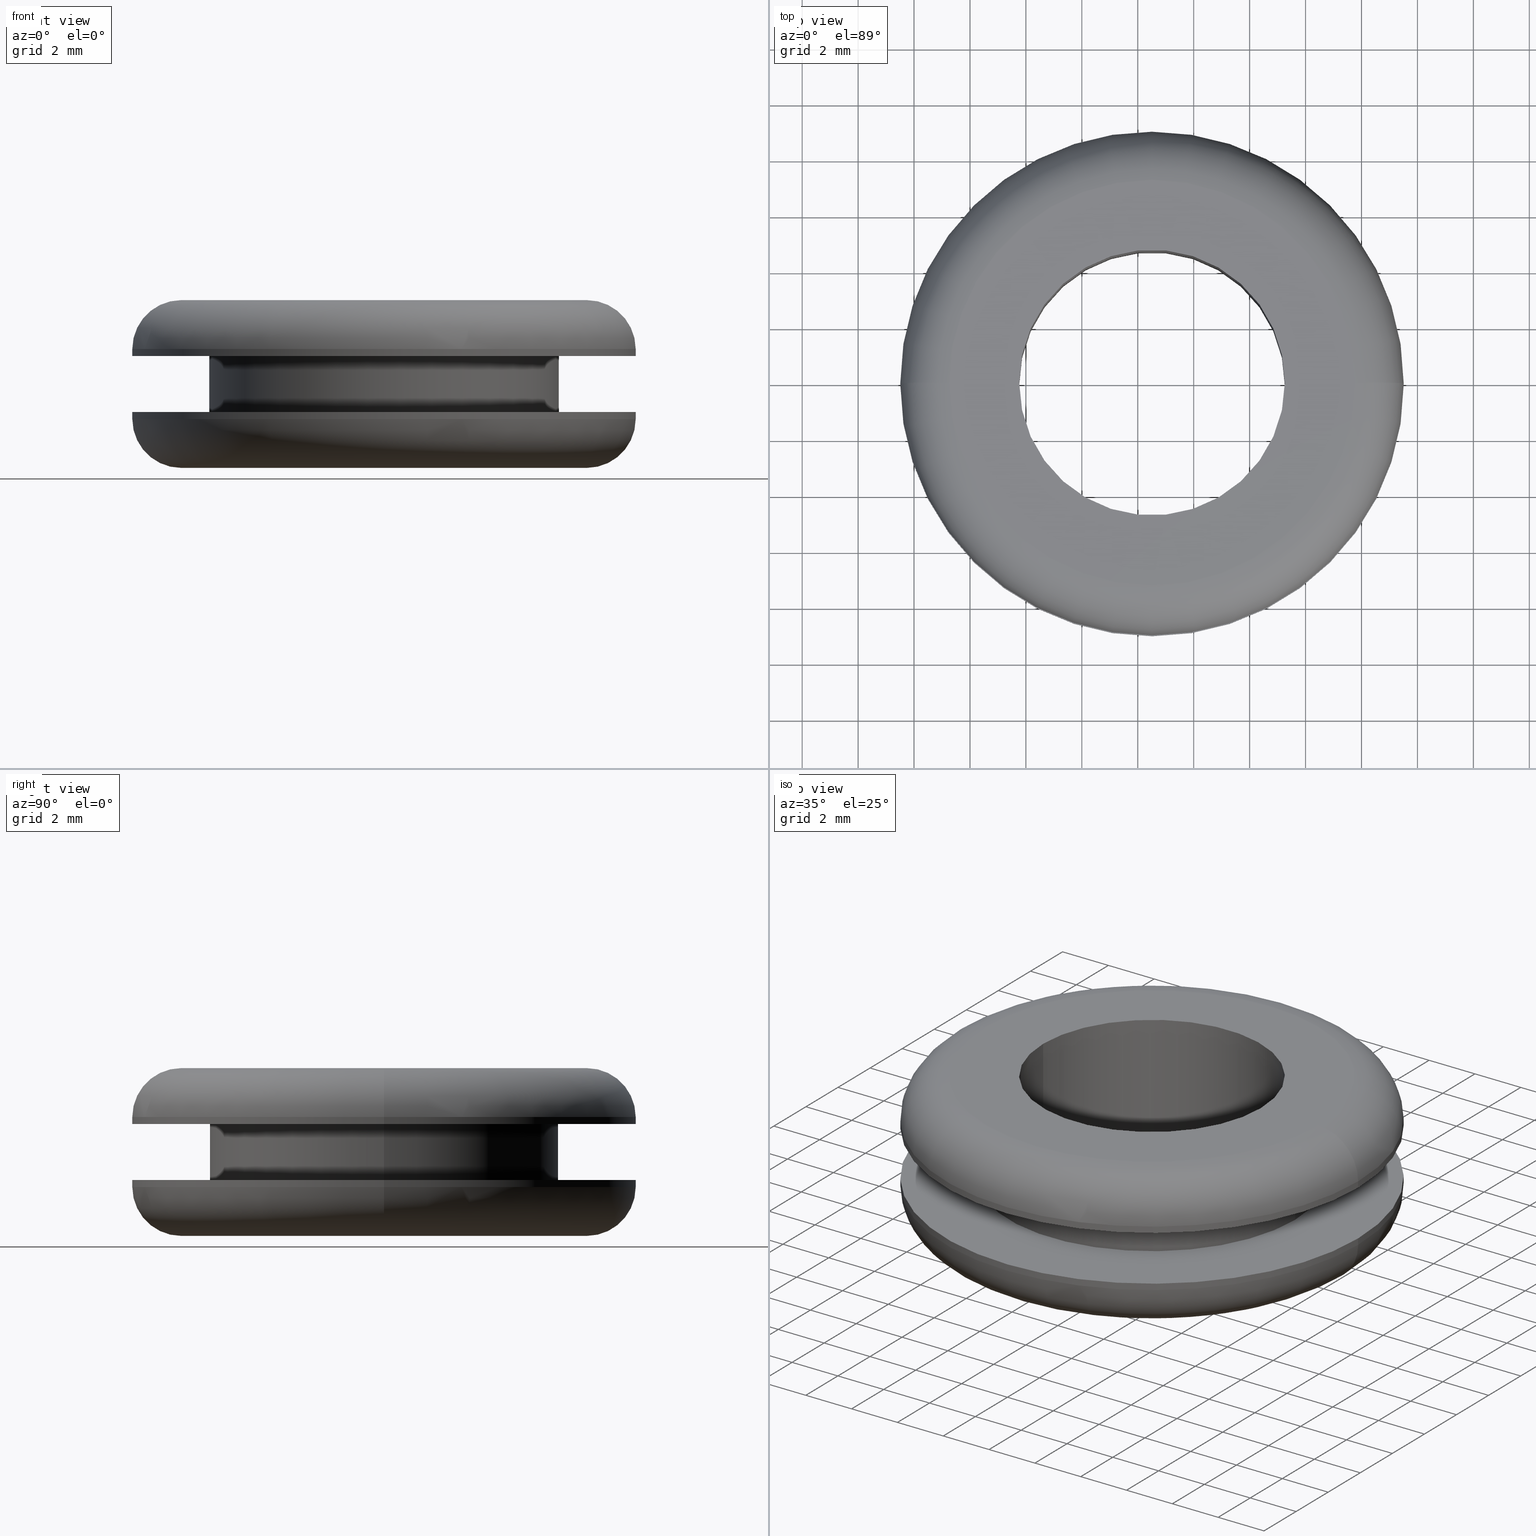
[diagram: canonical four-view strip — front | top / right | iso, engineering-drawing reading convention]
A machine part, canonical four-view strip (front | top / right | iso — engineering-drawing reading convention). The complete STEP part file that produces these views, byte-faithful:
ISO-10303-21;
HEADER;
FILE_DESCRIPTION (( 'STEP AP214' ),
    '1' );
FILE_NAME ('TM_346_4.STEP',
    '2018-06-13T02:48:11',
    ( '' ),
    ( '' ),
    'SwSTEP 2.0',
    'SolidWorks 2015',
    '' );
FILE_SCHEMA (( 'AUTOMOTIVE_DESIGN' ));
ENDSEC;

DATA;
#1 = DIRECTION ( 'NONE',  ( -1.000000000000000000, 0.0000000000000000000, 0.0000000000000000000 ) ) ;
#2 = ADVANCED_FACE ( 'NONE', ( #423, #465 ), #144, .F. ) ;
#3 = AXIS2_PLACEMENT_3D ( 'NONE', #138, #358, #392 ) ;
#4 = VERTEX_POINT ( 'NONE', #65 ) ;
#5 = DIRECTION ( 'NONE',  ( 0.0000000000000000000, 0.0000000000000000000, -1.000000000000000000 ) ) ;
#6 = VERTEX_POINT ( 'NONE', #153 ) ;
#7 = DIRECTION ( 'NONE',  ( 1.000000000000000000, 0.0000000000000000000, 0.0000000000000000000 ) ) ;
#8 = CARTESIAN_POINT ( 'NONE',  ( 106.7589284890372000, 7.654042494697900200E-016, 0.0000000000000000000 ) ) ;
#9 = EDGE_CURVE ( 'NONE', #172, #178, #96, .T. ) ;
#10 = DIRECTION ( 'NONE',  ( -1.000000000000000000, -1.224646799147352200E-016, 0.0000000000000000000 ) ) ;
#11 = EDGE_CURVE ( 'NONE', #31, #21, #41, .T. ) ;
#12 = CARTESIAN_POINT ( 'NONE',  ( 105.2589284890372000, 5.817072295976868000E-016, 135.6288681965060100 ) ) ;
#13 = ORIENTED_EDGE ( 'NONE', *, *, #291, .F. ) ;
#14 = EDGE_LOOP ( 'NONE', ( #478, #327, #448, #92 ) ) ;
#15 = AXIS2_PLACEMENT_3D ( 'NONE', #319, #433, #477 ) ;
#16 = CYLINDRICAL_SURFACE ( 'NONE', #456, 4.750000000022000200 ) ;
#17 = DIRECTION ( 'NONE',  ( -1.000000000000000000, 0.0000000000000000000, 0.0000000000000000000 ) ) ;
#18 = DIRECTION ( 'NONE',  ( 0.0000000000000000000, 0.0000000000000000000, -1.000000000000000000 ) ) ;
#19 = TOROIDAL_SURFACE ( 'NONE', #277, 7.250000000022000200, 1.750000000000000000 ) ;
#20 = AXIS2_PLACEMENT_3D ( 'NONE', #267, #191, #220 ) ;
#21 = VERTEX_POINT ( 'NONE', #376 ) ;
#22 =( GEOMETRIC_REPRESENTATION_CONTEXT ( 3 ) GLOBAL_UNCERTAINTY_ASSIGNED_CONTEXT ( ( #241 ) ) GLOBAL_UNIT_ASSIGNED_CONTEXT ( ( #184, #468, #425 ) ) REPRESENTATION_CONTEXT ( 'NONE', 'WORKASPACE' ) );
#23 = CARTESIAN_POINT ( 'NONE',  ( 100.5089284890152000, 0.0000000000000000000, 131.3788681965059800 ) ) ;
#24 = DIRECTION ( 'NONE',  ( 0.0000000000000000000, 0.0000000000000000000, -1.000000000000000000 ) ) ;
#25 = CARTESIAN_POINT ( 'NONE',  ( 100.5089284890152000, 0.0000000000000000000, 131.6288681965059800 ) ) ;
#26 = CYLINDRICAL_SURFACE ( 'NONE', #406, 9.000000000022003700 ) ;
#27 = DIRECTION ( 'NONE',  ( 0.0000000000000000000, 0.0000000000000000000, -1.000000000000000000 ) ) ;
#28 = CIRCLE ( 'NONE', #221, 7.250000000022002800 ) ;
#29 = EDGE_CURVE ( 'NONE', #356, #194, #282, .T. ) ;
#30 = DIRECTION ( 'NONE',  ( 0.0000000000000000000, 0.0000000000000000000, 1.000000000000000000 ) ) ;
#31 = VERTEX_POINT ( 'NONE', #182 ) ;
#32 = ADVANCED_FACE ( 'NONE', ( #132 ), #304, .T. ) ;
#33 = EDGE_CURVE ( 'NONE', #87, #343, #436, .T. ) ;
#34 = VERTEX_POINT ( 'NONE', #435 ) ;
#35 = ORIENTED_EDGE ( 'NONE', *, *, #365, .T. ) ;
#36 = CIRCLE ( 'NONE', #307, 4.750000000022000200 ) ;
#37 = EDGE_LOOP ( 'NONE', ( #355, #415 ) ) ;
#38 = CARTESIAN_POINT ( 'NONE',  ( 100.5089284890152000, 0.0000000000000000000, 0.0000000000000000000 ) ) ;
#39 = EDGE_CURVE ( 'NONE', #147, #475, #133, .T. ) ;
#40 = CARTESIAN_POINT ( 'NONE',  ( 109.5089284890372000, 1.102182119235311900E-015, 0.0000000000000000000 ) ) ;
#41 = CIRCLE ( 'NONE', #394, 6.250000000022002000 ) ;
#42 = VERTEX_POINT ( 'NONE', #217 ) ;
#43 = DIRECTION ( 'NONE',  ( 0.0000000000000000000, 0.0000000000000000000, -1.000000000000000000 ) ) ;
#44 = PRODUCT ( 'TM_346_4', 'TM_346_4', '', ( #171 ) ) ;
#45 = AXIS2_PLACEMENT_3D ( 'NONE', #228, #156, #120 ) ;
#46 = VERTEX_POINT ( 'NONE', #366 ) ;
#47 = DIRECTION ( 'NONE',  ( -1.000000000000000000, 0.0000000000000000000, 0.0000000000000000000 ) ) ;
#48 = ORIENTED_EDGE ( 'NONE', *, *, #308, .F. ) ;
#49 = EDGE_LOOP ( 'NONE', ( #101, #331 ) ) ;
#50 = CARTESIAN_POINT ( 'NONE',  ( 94.25892848899320600, 0.0000000000000000000, 0.0000000000000000000 ) ) ;
#51 = CYLINDRICAL_SURFACE ( 'NONE', #264, 9.000000000022003700 ) ;
#52 = CARTESIAN_POINT ( 'NONE',  ( 100.5089284890152000, 0.0000000000000000000, 0.0000000000000000000 ) ) ;
#53 = CARTESIAN_POINT ( 'NONE',  ( 100.5089284890152000, 0.0000000000000000000, 0.0000000000000000000 ) ) ;
#54 = ADVANCED_BREP_SHAPE_REPRESENTATION ( 'TM_346_4', ( #280, #224 ), #22 ) ;
#55 = FACE_OUTER_BOUND ( 'NONE', #273, .T. ) ;
#56 = PRODUCT_DEFINITION_CONTEXT ( 'detailed design', #466, 'design' ) ;
#57 = CARTESIAN_POINT ( 'NONE',  ( 100.5089284890152000, 0.0000000000000000000, 129.6288681965059800 ) ) ;
#58 = CARTESIAN_POINT ( 'NONE',  ( 100.5089284890152000, 0.0000000000000000000, 0.0000000000000000000 ) ) ;
#59 = VECTOR ( 'NONE', #162, 1000.000000000000000 ) ;
#60 = ORIENTED_EDGE ( 'NONE', *, *, #29, .T. ) ;
#61 = CARTESIAN_POINT ( 'NONE',  ( 109.5089284890372000, 1.102182119235311300E-015, 133.8788681965059800 ) ) ;
#62 = AXIS2_PLACEMENT_3D ( 'NONE', #449, #196, #411 ) ;
#63 =( LENGTH_UNIT ( ) NAMED_UNIT ( * ) SI_UNIT ( .MILLI., .METRE. ) );
#64 = EDGE_CURVE ( 'NONE', #259, #4, #401, .T. ) ;
#65 = CARTESIAN_POINT ( 'NONE',  ( 105.2589284890372000, 5.817072295976868000E-016, 129.6288681965059800 ) ) ;
#66 = FACE_OUTER_BOUND ( 'NONE', #227, .T. ) ;
#67 = DIRECTION ( 'NONE',  ( 0.0000000000000000000, 0.0000000000000000000, 1.000000000000000000 ) ) ;
#68 = AXIS2_PLACEMENT_3D ( 'NONE', #121, #336, #325 ) ;
#69 = DIRECTION ( 'NONE',  ( -1.000000000000000000, 0.0000000000000000000, 0.0000000000000000000 ) ) ;
#70 = COLOUR_RGB ( '',0.7921568627450980000, 0.8196078431372548800, 0.9333333333333333500 ) ;
#71 = EDGE_CURVE ( 'NONE', #88, #4, #339, .T. ) ;
#72 = DIRECTION ( 'NONE',  ( 0.0000000000000000000, 0.0000000000000000000, -1.000000000000000000 ) ) ;
#73 = VERTEX_POINT ( 'NONE', #260 ) ;
#74 = EDGE_LOOP ( 'NONE', ( #237, #150, #134, #248 ) ) ;
#75 = EDGE_LOOP ( 'NONE', ( #377, #161, #404, #407 ) ) ;
#76 = ORIENTED_EDGE ( 'NONE', *, *, #90, .F. ) ;
#77 = ADVANCED_FACE ( 'NONE', ( #432, #55 ), #210, .F. ) ;
#78 = AXIS2_PLACEMENT_3D ( 'NONE', #38, #149, #1 ) ;
#79 = DIRECTION ( 'NONE',  ( 0.0000000000000000000, 0.0000000000000000000, -1.000000000000000000 ) ) ;
#80 = VECTOR ( 'NONE', #342, 1000.000000000000000 ) ;
#81 = STYLED_ITEM ( 'NONE', ( #460 ), #54 ) ;
#82 = DIRECTION ( 'NONE',  ( 0.0000000000000000000, 0.0000000000000000000, -1.000000000000000000 ) ) ;
#83 = SURFACE_STYLE_FILL_AREA ( #106 ) ;
#84 = CARTESIAN_POINT ( 'NONE',  ( 95.75892848899320600, 0.0000000000000000000, 129.6288681965059800 ) ) ;
#85 = EDGE_LOOP ( 'NONE', ( #234, #48, #137, #271 ) ) ;
#86 =( NAMED_UNIT ( * ) PLANE_ANGLE_UNIT ( ) SI_UNIT ( $, .RADIAN. ) );
#87 = VERTEX_POINT ( 'NONE', #272 ) ;
#88 = VERTEX_POINT ( 'NONE', #84 ) ;
#89 = FILL_AREA_STYLE_COLOUR ( '', #70 ) ;
#90 = EDGE_CURVE ( 'NONE', #6, #209, #145, .T. ) ;
#91 = CARTESIAN_POINT ( 'NONE',  ( 100.5089284890152000, 0.0000000000000000000, 135.6288681965060100 ) ) ;
#92 = ORIENTED_EDGE ( 'NONE', *, *, #242, .F. ) ;
#93 = PRESENTATION_STYLE_ASSIGNMENT (( #124 ) ) ;
#94 = AXIS2_PLACEMENT_3D ( 'NONE', #409, #30, #7 ) ;
#95 = CARTESIAN_POINT ( 'NONE',  ( 100.5089284890152000, 0.0000000000000000000, 0.0000000000000000000 ) ) ;
#96 = CIRCLE ( 'NONE', #348, 9.000000000022003700 ) ;
#97 = DIRECTION ( 'NONE',  ( 0.0000000000000000000, 0.0000000000000000000, -1.000000000000000000 ) ) ;
#98 = ORIENTED_EDGE ( 'NONE', *, *, #170, .F. ) ;
#99 = CARTESIAN_POINT ( 'NONE',  ( 107.7589284890372000, 8.878689293845252600E-016, 131.3788681965059800 ) ) ;
#100 = ORIENTED_EDGE ( 'NONE', *, *, #9, .T. ) ;
#101 = ORIENTED_EDGE ( 'NONE', *, *, #71, .F. ) ;
#102 = CARTESIAN_POINT ( 'NONE',  ( 107.7589284890372000, 9.950255243099186200E-016, 129.6288681965059800 ) ) ;
#103 = CIRCLE ( 'NONE', #200, 9.000000000022003700 ) ;
#104 =( NAMED_UNIT ( * ) PLANE_ANGLE_UNIT ( ) SI_UNIT ( $, .RADIAN. ) );
#105 = AXIS2_PLACEMENT_3D ( 'NONE', #446, #158, #300 ) ;
#106 = FILL_AREA_STYLE ('',( #255 ) ) ;
#107 = EDGE_LOOP ( 'NONE', ( #442, #368 ) ) ;
#108 = PRESENTATION_LAYER_ASSIGNMENT (  '', '', ( #81 ) ) ;
#109 = DIRECTION ( 'NONE',  ( -1.000000000000000000, 0.0000000000000000000, 0.0000000000000000000 ) ) ;
#110 = CARTESIAN_POINT ( 'NONE',  ( 91.50892848899319200, 0.0000000000000000000, 133.6288681965059800 ) ) ;
#111 = EDGE_LOOP ( 'NONE', ( #309, #364 ) ) ;
#112 = EDGE_LOOP ( 'NONE', ( #369, #384 ) ) ;
#113 = ADVANCED_FACE ( 'NONE', ( #334 ), #240, .T. ) ;
#114 = AXIS2_PLACEMENT_3D ( 'NONE', #23, #287, #252 ) ;
#115 = ORIENTED_EDGE ( 'NONE', *, *, #270, .T. ) ;
#116 = EDGE_CURVE ( 'NONE', #147, #343, #157, .T. ) ;
#117 = EDGE_LOOP ( 'NONE', ( #98, #76 ) ) ;
#118 = AXIS2_PLACEMENT_3D ( 'NONE', #443, #223, #405 ) ;
#119 = CIRCLE ( 'NONE', #428, 9.000000000022003700 ) ;
#120 = DIRECTION ( 'NONE',  ( 0.0000000000000000000, 0.0000000000000000000, -1.000000000000000000 ) ) ;
#121 = CARTESIAN_POINT ( 'NONE',  ( 100.5089284890152000, 0.0000000000000000000, 133.6288681965059800 ) ) ;
#122 = CIRCLE ( 'NONE', #105, 6.250000000022002000 ) ;
#123 = DIRECTION ( 'NONE',  ( 0.0000000000000000000, 0.0000000000000000000, -1.000000000000000000 ) ) ;
#124 = SURFACE_STYLE_USAGE ( .BOTH. , #380 ) ;
#125 = ORIENTED_EDGE ( 'NONE', *, *, #166, .F. ) ;
#126 = AXIS2_PLACEMENT_3D ( 'NONE', #385, #349, #431 ) ;
#127 = ORIENTED_EDGE ( 'NONE', *, *, #270, .F. ) ;
#128 = MECHANICAL_DESIGN_GEOMETRIC_PRESENTATION_REPRESENTATION (  '', ( #81 ), #155 ) ;
#129 = CIRCLE ( 'NONE', #357, 1.750000000000001600 ) ;
#130 = DIRECTION ( 'NONE',  ( -1.000000000000000000, 0.0000000000000000000, 0.0000000000000000000 ) ) ;
#131 = CIRCLE ( 'NONE', #45, 1.750000000000001600 ) ;
#132 = FACE_OUTER_BOUND ( 'NONE', #290, .T. ) ;
#133 = LINE ( 'NONE', #322, #244 ) ;
#134 = ORIENTED_EDGE ( 'NONE', *, *, #265, .F. ) ;
#135 = AXIS2_PLACEMENT_3D ( 'NONE', #233, #201, #455 ) ;
#136 = EDGE_CURVE ( 'NONE', #73, #475, #258, .T. ) ;
#137 = ORIENTED_EDGE ( 'NONE', *, *, #437, .T. ) ;
#138 = CARTESIAN_POINT ( 'NONE',  ( 100.5089284890152000, 0.0000000000000000000, 135.6288681965060100 ) ) ;
#139 = DIRECTION ( 'NONE',  ( 0.0000000000000000000, 0.0000000000000000000, -1.000000000000000000 ) ) ;
#140 = CARTESIAN_POINT ( 'NONE',  ( 100.5089284890152000, 0.0000000000000000000, 135.6288681965060100 ) ) ;
#141 = FACE_BOUND ( 'NONE', #107, .T. ) ;
#142 = AXIS2_PLACEMENT_3D ( 'NONE', #430, #476, #399 ) ;
#143 = DIRECTION ( 'NONE',  ( -0.0000000000000000000, -1.000000000000000000, -0.0000000000000000000 ) ) ;
#144 = PLANE ( 'NONE',  #374 ) ;
#145 = CIRCLE ( 'NONE', #68, 6.250000000022002000 ) ;
#146 = CARTESIAN_POINT ( 'NONE',  ( 91.50892848899319200, 0.0000000000000000000, 133.8788681965059800 ) ) ;
#147 = VERTEX_POINT ( 'NONE', #146 ) ;
#148 = ADVANCED_FACE ( 'NONE', ( #335 ), #434, .T. ) ;
#149 = DIRECTION ( 'NONE',  ( 0.0000000000000000000, 0.0000000000000000000, -1.000000000000000000 ) ) ;
#150 = ORIENTED_EDGE ( 'NONE', *, *, #208, .T. ) ;
#151 = ADVANCED_FACE ( 'NONE', ( #410 ), #207, .T. ) ;
#152 = AXIS2_PLACEMENT_3D ( 'NONE', #338, #123, #378 ) ;
#153 = CARTESIAN_POINT ( 'NONE',  ( 106.7589284890372000, 7.654042494697898200E-016, 133.6288681965059800 ) ) ;
#154 = VECTOR ( 'NONE', #473, 1000.000000000000000 ) ;
#155 =( GEOMETRIC_REPRESENTATION_CONTEXT ( 3 ) GLOBAL_UNCERTAINTY_ASSIGNED_CONTEXT ( ( #193 ) ) GLOBAL_UNIT_ASSIGNED_CONTEXT ( ( #63, #104, #391 ) ) REPRESENTATION_CONTEXT ( 'NONE', 'WORKASPACE' ) );
#156 = DIRECTION ( 'NONE',  ( -0.0000000000000000000, -1.000000000000000000, -0.0000000000000000000 ) ) ;
#157 = CIRCLE ( 'NONE', #118, 9.000000000022003700 ) ;
#158 = DIRECTION ( 'NONE',  ( 0.0000000000000000000, 0.0000000000000000000, -1.000000000000000000 ) ) ;
#159 = UNCERTAINTY_MEASURE_WITH_UNIT (LENGTH_MEASURE( 1.000000000000000100E-005 ), #340, 'distance_accuracy_value', 'NONE');
#160 = CIRCLE ( 'NONE', #298, 9.000000000022003700 ) ;
#161 = ORIENTED_EDGE ( 'NONE', *, *, #90, .T. ) ;
#162 = DIRECTION ( 'NONE',  ( 0.0000000000000000000, 0.0000000000000000000, -1.000000000000000000 ) ) ;
#163 = ORIENTED_EDGE ( 'NONE', *, *, #440, .F. ) ;
#164 = FILL_AREA_STYLE ('',( #89 ) ) ;
#165 = AXIS2_PLACEMENT_3D ( 'NONE', #140, #361, #109 ) ;
#166 = EDGE_CURVE ( 'NONE', #34, #147, #131, .T. ) ;
#167 = LINE ( 'NONE', #386, #408 ) ;
#168 = CARTESIAN_POINT ( 'NONE',  ( 91.50892848899319200, 0.0000000000000000000, 131.6288681965059800 ) ) ;
#169 = AXIS2_PLACEMENT_3D ( 'NONE', #372, #79, #330 ) ;
#170 = EDGE_CURVE ( 'NONE', #209, #6, #122, .T. ) ;
#171 = PRODUCT_CONTEXT ( 'NONE', #284, 'mechanical' ) ;
#172 = VERTEX_POINT ( 'NONE', #438 ) ;
#173 = ORIENTED_EDGE ( 'NONE', *, *, #440, .T. ) ;
#174 = DIRECTION ( 'NONE',  ( 0.0000000000000000000, 0.0000000000000000000, -1.000000000000000000 ) ) ;
#175 = DIRECTION ( 'NONE',  ( 1.000000000000000000, 0.0000000000000000000, 0.0000000000000000000 ) ) ;
#176 = CYLINDRICAL_SURFACE ( 'NONE', #251, 6.250000000022002000 ) ;
#177 = EDGE_LOOP ( 'NONE', ( #127, #163 ) ) ;
#178 = VERTEX_POINT ( 'NONE', #294 ) ;
#179 = AXIS2_PLACEMENT_3D ( 'NONE', #218, #5, #447 ) ;
#180 = CIRCLE ( 'NONE', #114, 9.000000000022003700 ) ;
#181 = CARTESIAN_POINT ( 'NONE',  ( 94.25892848899320600, 0.0000000000000000000, 133.6288681965059800 ) ) ;
#182 = CARTESIAN_POINT ( 'NONE',  ( 106.7589284890372000, 7.654042494697898200E-016, 131.6288681965059800 ) ) ;
#183 = DIRECTION ( 'NONE',  ( -1.000000000000000000, 0.0000000000000000000, 0.0000000000000000000 ) ) ;
#184 =( LENGTH_UNIT ( ) NAMED_UNIT ( * ) SI_UNIT ( .MILLI., .METRE. ) );
#185 = COLOUR_RGB ( '',0.7921568627450980000, 0.8196078431372548800, 0.9333333333333333500 ) ;
#186 = ORIENTED_EDGE ( 'NONE', *, *, #39, .T. ) ;
#187 = EDGE_LOOP ( 'NONE', ( #13, #173, #375, #427 ) ) ;
#188 = AXIS2_PLACEMENT_3D ( 'NONE', #350, #235, #17 ) ;
#189 = ADVANCED_FACE ( 'NONE', ( #296 ), #230, .F. ) ;
#190 = EDGE_CURVE ( 'NONE', #343, #147, #383, .T. ) ;
#191 = DIRECTION ( 'NONE',  ( 0.0000000000000000000, 0.0000000000000000000, -1.000000000000000000 ) ) ;
#192 =( GEOMETRIC_REPRESENTATION_CONTEXT ( 3 ) GLOBAL_UNCERTAINTY_ASSIGNED_CONTEXT ( ( #159 ) ) GLOBAL_UNIT_ASSIGNED_CONTEXT ( ( #340, #86, #303 ) ) REPRESENTATION_CONTEXT ( 'NONE', 'WORKASPACE' ) );
#193 = UNCERTAINTY_MEASURE_WITH_UNIT (LENGTH_MEASURE( 1.000000000000000100E-005 ), #63, 'distance_accuracy_value', 'NONE');
#194 = VERTEX_POINT ( 'NONE', #301 ) ;
#195 = EDGE_CURVE ( 'NONE', #6, #31, #199, .T. ) ;
#196 = DIRECTION ( 'NONE',  ( 0.0000000000000000000, 0.0000000000000000000, -1.000000000000000000 ) ) ;
#197 = DIRECTION ( 'NONE',  ( 0.0000000000000000000, 0.0000000000000000000, -1.000000000000000000 ) ) ;
#198 = DIRECTION ( 'NONE',  ( -1.000000000000000000, 0.0000000000000000000, 0.0000000000000000000 ) ) ;
#199 = LINE ( 'NONE', #8, #316 ) ;
#200 = AXIS2_PLACEMENT_3D ( 'NONE', #305, #43, #274 ) ;
#201 = DIRECTION ( 'NONE',  ( 0.0000000000000000000, 0.0000000000000000000, -1.000000000000000000 ) ) ;
#202 = ORIENTED_EDGE ( 'NONE', *, *, #33, .F. ) ;
#203 = CARTESIAN_POINT ( 'NONE',  ( 0.0000000000000000000, 0.0000000000000000000, 0.0000000000000000000 ) ) ;
#204 = DIRECTION ( 'NONE',  ( 0.0000000000000000000, 0.0000000000000000000, 1.000000000000000000 ) ) ;
#205 = ORIENTED_EDGE ( 'NONE', *, *, #314, .T. ) ;
#206 = AXIS2_PLACEMENT_3D ( 'NONE', #99, #424, #388 ) ;
#207 = CYLINDRICAL_SURFACE ( 'NONE', #78, 9.000000000022003700 ) ;
#208 = EDGE_CURVE ( 'NONE', #343, #73, #215, .T. ) ;
#209 = VERTEX_POINT ( 'NONE', #181 ) ;
#210 = PLANE ( 'NONE',  #94 ) ;
#211 = DIRECTION ( 'NONE',  ( 0.0000000000000000000, 0.0000000000000000000, -1.000000000000000000 ) ) ;
#212 = DIRECTION ( 'NONE',  ( 0.0000000000000000000, 0.0000000000000000000, -1.000000000000000000 ) ) ;
#213 = FACE_OUTER_BOUND ( 'NONE', #85, .T. ) ;
#214 = DIRECTION ( 'NONE',  ( 1.000000000000000000, 0.0000000000000000000, 0.0000000000000000000 ) ) ;
#215 = LINE ( 'NONE', #40, #268 ) ;
#216 = EDGE_CURVE ( 'NONE', #21, #31, #302, .T. ) ;
#217 = CARTESIAN_POINT ( 'NONE',  ( 109.5089284890372000, 1.102182119235311300E-015, 131.6288681965059800 ) ) ;
#218 = CARTESIAN_POINT ( 'NONE',  ( 100.5089284890152000, 0.0000000000000000000, 0.0000000000000000000 ) ) ;
#219 = ADVANCED_FACE ( 'NONE', ( #458 ), #176, .T. ) ;
#220 = DIRECTION ( 'NONE',  ( -1.000000000000000000, 0.0000000000000000000, 0.0000000000000000000 ) ) ;
#221 = AXIS2_PLACEMENT_3D ( 'NONE', #91, #306, #47 ) ;
#222 = ORIENTED_EDGE ( 'NONE', *, *, #337, .F. ) ;
#223 = DIRECTION ( 'NONE',  ( 0.0000000000000000000, 0.0000000000000000000, -1.000000000000000000 ) ) ;
#224 = AXIS2_PLACEMENT_3D ( 'NONE', #203, #204, #175 ) ;
#225 = CIRCLE ( 'NONE', #382, 7.250000000022002800 ) ;
#226 = VECTOR ( 'NONE', #381, 1000.000000000000000 ) ;
#227 = EDGE_LOOP ( 'NONE', ( #344, #453, #186, #400 ) ) ;
#228 = CARTESIAN_POINT ( 'NONE',  ( 93.25892848899319200, 0.0000000000000000000, 133.8788681965059800 ) ) ;
#229 = CARTESIAN_POINT ( 'NONE',  ( 100.5089284890152000, 0.0000000000000000000, 131.3788681965059800 ) ) ;
#230 = CYLINDRICAL_SURFACE ( 'NONE', #179, 4.750000000022000200 ) ;
#231 = EDGE_LOOP ( 'NONE', ( #202, #353, #323, #471 ) ) ;
#232 = CARTESIAN_POINT ( 'NONE',  ( 109.5089284890372000, 1.102182119235311900E-015, 0.0000000000000000000 ) ) ;
#233 = CARTESIAN_POINT ( 'NONE',  ( 106.7589284890371900, 0.0000000000000000000, 131.6288681965059800 ) ) ;
#234 = ORIENTED_EDGE ( 'NONE', *, *, #64, .F. ) ;
#235 = DIRECTION ( 'NONE',  ( 0.0000000000000000000, 0.0000000000000000000, -1.000000000000000000 ) ) ;
#236 = ORIENTED_EDGE ( 'NONE', *, *, #412, .T. ) ;
#237 = ORIENTED_EDGE ( 'NONE', *, *, #116, .T. ) ;
#238 = EDGE_CURVE ( 'NONE', #87, #34, #28, .T. ) ;
#239 = FACE_OUTER_BOUND ( 'NONE', #111, .T. ) ;
#240 = TOROIDAL_SURFACE ( 'NONE', #142, 7.250000000022000200, 1.750000000000000000 ) ;
#241 = UNCERTAINTY_MEASURE_WITH_UNIT (LENGTH_MEASURE( 1.000000000000000100E-005 ), #184, 'distance_accuracy_value', 'NONE');
#242 = EDGE_CURVE ( 'NONE', #209, #21, #367, .T. ) ;
#243 = DIRECTION ( 'NONE',  ( 0.0000000000000000000, 0.0000000000000000000, -1.000000000000000000 ) ) ;
#244 = VECTOR ( 'NONE', #72, 1000.000000000000000 ) ;
#245 = DIRECTION ( 'NONE',  ( -1.000000000000000000, 0.0000000000000000000, 0.0000000000000000000 ) ) ;
#246 = EDGE_LOOP ( 'NONE', ( #315, #249, #247, #125 ) ) ;
#247 = ORIENTED_EDGE ( 'NONE', *, *, #116, .F. ) ;
#248 = ORIENTED_EDGE ( 'NONE', *, *, #39, .F. ) ;
#249 = ORIENTED_EDGE ( 'NONE', *, *, #33, .T. ) ;
#250 = APPLICATION_PROTOCOL_DEFINITION ( 'draft international standard', 'automotive_design', 1998, #284 ) ;
#251 = AXIS2_PLACEMENT_3D ( 'NONE', #95, #421, #459 ) ;
#252 = DIRECTION ( 'NONE',  ( -1.000000000000000000, 0.0000000000000000000, 0.0000000000000000000 ) ) ;
#253 = CIRCLE ( 'NONE', #206, 1.750000000000001600 ) ;
#254 = PRODUCT_DEFINITION ( 'UNKNOWN', '', #279, #56 ) ;
#255 = FILL_AREA_STYLE_COLOUR ( '', #185 ) ;
#256 = CARTESIAN_POINT ( 'NONE',  ( 100.5089284890152000, 0.0000000000000000000, 129.6288681965059800 ) ) ;
#257 = SURFACE_STYLE_FILL_AREA ( #164 ) ;
#258 = CIRCLE ( 'NONE', #169, 9.000000000022003700 ) ;
#259 = VERTEX_POINT ( 'NONE', #12 ) ;
#260 = CARTESIAN_POINT ( 'NONE',  ( 109.5089284890372000, 1.102182119235311300E-015, 133.6288681965059800 ) ) ;
#261 = ADVANCED_FACE ( 'NONE', ( #398 ), #19, .T. ) ;
#262 = EDGE_LOOP ( 'NONE', ( #403, #318, #389, #416 ) ) ;
#263 = ORIENTED_EDGE ( 'NONE', *, *, #314, .F. ) ;
#264 = AXIS2_PLACEMENT_3D ( 'NONE', #419, #321, #183 ) ;
#265 = EDGE_CURVE ( 'NONE', #475, #73, #103, .T. ) ;
#266 = CIRCLE ( 'NONE', #165, 4.750000000022000200 ) ;
#267 = CARTESIAN_POINT ( 'NONE',  ( 100.5089284890152000, 0.0000000000000000000, 133.8788681965059800 ) ) ;
#268 = VECTOR ( 'NONE', #269, 1000.000000000000000 ) ;
#269 = DIRECTION ( 'NONE',  ( 0.0000000000000000000, 0.0000000000000000000, -1.000000000000000000 ) ) ;
#270 = EDGE_CURVE ( 'NONE', #297, #42, #160, .T. ) ;
#271 = ORIENTED_EDGE ( 'NONE', *, *, #71, .T. ) ;
#272 = CARTESIAN_POINT ( 'NONE',  ( 107.7589284890372000, 9.950255243099186200E-016, 135.6288681965060100 ) ) ;
#273 = EDGE_LOOP ( 'NONE', ( #236, #60 ) ) ;
#274 = DIRECTION ( 'NONE',  ( -1.000000000000000000, 0.0000000000000000000, 0.0000000000000000000 ) ) ;
#275 = DIRECTION ( 'NONE',  ( 0.0000000000000000000, 0.0000000000000000000, -1.000000000000000000 ) ) ;
#276 = CIRCLE ( 'NONE', #62, 4.750000000022000200 ) ;
#277 = AXIS2_PLACEMENT_3D ( 'NONE', #345, #275, #198 ) ;
#278 = DIRECTION ( 'NONE',  ( -1.000000000000000000, 0.0000000000000000000, 0.0000000000000000000 ) ) ;
#279 = PRODUCT_DEFINITION_FORMATION_WITH_SPECIFIED_SOURCE ( 'ANY', '', #44, .NOT_KNOWN. ) ;
#280 = MANIFOLD_SOLID_BREP ( '���߰�1', #379 ) ;
#281 = DIRECTION ( 'NONE',  ( 0.0000000000000000000, 0.0000000000000000000, -1.000000000000000000 ) ) ;
#282 = CIRCLE ( 'NONE', #418, 7.250000000022002800 ) ;
#283 = AXIS2_PLACEMENT_3D ( 'NONE', #53, #211, #313 ) ;
#284 = APPLICATION_CONTEXT ( 'automotive_design' ) ;
#285 = EDGE_CURVE ( 'NONE', #259, #46, #276, .T. ) ;
#286 = CARTESIAN_POINT ( 'NONE',  ( 109.5089284890371900, 0.0000000000000000000, 133.6288681965059800 ) ) ;
#287 = DIRECTION ( 'NONE',  ( 0.0000000000000000000, 0.0000000000000000000, -1.000000000000000000 ) ) ;
#288 = DIRECTION ( 'NONE',  ( 0.0000000000000000000, 0.0000000000000000000, -1.000000000000000000 ) ) ;
#289 = DIRECTION ( 'NONE',  ( -1.000000000000000000, 0.0000000000000000000, 0.0000000000000000000 ) ) ;
#290 = EDGE_LOOP ( 'NONE', ( #426, #100, #341, #474 ) ) ;
#291 = EDGE_CURVE ( 'NONE', #42, #172, #469, .T. ) ;
#292 = CARTESIAN_POINT ( 'NONE',  ( 105.2589284890372000, 5.817072295976869000E-016, 0.0000000000000000000 ) ) ;
#293 = ADVANCED_FACE ( 'NONE', ( #359, #371 ), #417, .F. ) ;
#294 = CARTESIAN_POINT ( 'NONE',  ( 91.50892848899319200, 0.0000000000000000000, 131.3788681965059800 ) ) ;
#295 = ADVANCED_FACE ( 'NONE', ( #454 ), #444, .T. ) ;
#296 = FACE_OUTER_BOUND ( 'NONE', #262, .T. ) ;
#297 = VERTEX_POINT ( 'NONE', #168 ) ;
#298 = AXIS2_PLACEMENT_3D ( 'NONE', #452, #197, #414 ) ;
#299 = PRODUCT_RELATED_PRODUCT_CATEGORY ( 'part', '', ( #44 ) ) ;
#300 = DIRECTION ( 'NONE',  ( -1.000000000000000000, 0.0000000000000000000, 0.0000000000000000000 ) ) ;
#301 = CARTESIAN_POINT ( 'NONE',  ( 93.25892848899319200, 0.0000000000000000000, 129.6288681965059800 ) ) ;
#302 = CIRCLE ( 'NONE', #126, 6.250000000022002000 ) ;
#303 =( NAMED_UNIT ( * ) SI_UNIT ( $, .STERADIAN. ) SOLID_ANGLE_UNIT ( ) );
#304 = TOROIDAL_SURFACE ( 'NONE', #472, 7.250000000022000200, 1.750000000000000000 ) ;
#305 = CARTESIAN_POINT ( 'NONE',  ( 100.5089284890152000, 0.0000000000000000000, 133.6288681965059800 ) ) ;
#306 = DIRECTION ( 'NONE',  ( 0.0000000000000000000, 0.0000000000000000000, -1.000000000000000000 ) ) ;
#307 = AXIS2_PLACEMENT_3D ( 'NONE', #461, #243, #422 ) ;
#308 = EDGE_CURVE ( 'NONE', #46, #259, #266, .T. ) ;
#309 = ORIENTED_EDGE ( 'NONE', *, *, #467, .F. ) ;
#310 = SURFACE_STYLE_USAGE ( .BOTH. , #317 ) ;
#311 = CIRCLE ( 'NONE', #3, 7.250000000022002800 ) ;
#312 = ORIENTED_EDGE ( 'NONE', *, *, #291, .T. ) ;
#313 = DIRECTION ( 'NONE',  ( -1.000000000000000000, 0.0000000000000000000, 0.0000000000000000000 ) ) ;
#314 = EDGE_CURVE ( 'NONE', #178, #172, #180, .T. ) ;
#315 = ORIENTED_EDGE ( 'NONE', *, *, #467, .T. ) ;
#316 = VECTOR ( 'NONE', #82, 1000.000000000000000 ) ;
#317 = SURFACE_SIDE_STYLE ('',( #83 ) ) ;
#318 = ORIENTED_EDGE ( 'NONE', *, *, #64, .T. ) ;
#319 = CARTESIAN_POINT ( 'NONE',  ( 100.5089284890152000, 0.0000000000000000000, 129.6288681965059800 ) ) ;
#320 = STYLED_ITEM ( 'NONE', ( #93 ), #280 ) ;
#321 = DIRECTION ( 'NONE',  ( 0.0000000000000000000, 0.0000000000000000000, -1.000000000000000000 ) ) ;
#322 = CARTESIAN_POINT ( 'NONE',  ( 91.50892848899319200, 0.0000000000000000000, 0.0000000000000000000 ) ) ;
#323 = ORIENTED_EDGE ( 'NONE', *, *, #166, .T. ) ;
#324 = DIRECTION ( 'NONE',  ( -1.000000000000000000, 0.0000000000000000000, 0.0000000000000000000 ) ) ;
#325 = DIRECTION ( 'NONE',  ( -1.000000000000000000, 0.0000000000000000000, 0.0000000000000000000 ) ) ;
#326 = ADVANCED_FACE ( 'NONE', ( #347 ), #51, .T. ) ;
#327 = ORIENTED_EDGE ( 'NONE', *, *, #195, .T. ) ;
#328 = ADVANCED_FACE ( 'NONE', ( #66 ), #333, .T. ) ;
#329 = EDGE_LOOP ( 'NONE', ( #205, #35, #441, #450 ) ) ;
#330 = DIRECTION ( 'NONE',  ( -1.000000000000000000, 0.0000000000000000000, 0.0000000000000000000 ) ) ;
#331 = ORIENTED_EDGE ( 'NONE', *, *, #387, .F. ) ;
#332 = AXIS2_PLACEMENT_3D ( 'NONE', #354, #174, #352 ) ;
#333 = CYLINDRICAL_SURFACE ( 'NONE', #283, 9.000000000022003700 ) ;
#334 = FACE_OUTER_BOUND ( 'NONE', #246, .T. ) ;
#335 = FACE_OUTER_BOUND ( 'NONE', #231, .T. ) ;
#336 = DIRECTION ( 'NONE',  ( 0.0000000000000000000, 0.0000000000000000000, -1.000000000000000000 ) ) ;
#337 = EDGE_CURVE ( 'NONE', #297, #178, #429, .T. ) ;
#338 = CARTESIAN_POINT ( 'NONE',  ( 100.5089284890152000, 0.0000000000000000000, 133.8788681965059800 ) ) ;
#339 = CIRCLE ( 'NONE', #15, 4.750000000022000200 ) ;
#340 =( LENGTH_UNIT ( ) NAMED_UNIT ( * ) SI_UNIT ( .MILLI., .METRE. ) );
#341 = ORIENTED_EDGE ( 'NONE', *, *, #463, .T. ) ;
#342 = DIRECTION ( 'NONE',  ( 0.0000000000000000000, 0.0000000000000000000, -1.000000000000000000 ) ) ;
#343 = VERTEX_POINT ( 'NONE', #61 ) ;
#344 = ORIENTED_EDGE ( 'NONE', *, *, #208, .F. ) ;
#345 = CARTESIAN_POINT ( 'NONE',  ( 100.5089284890152000, 0.0000000000000000000, 131.3788681965059800 ) ) ;
#346 = PRESENTATION_LAYER_ASSIGNMENT (  '', '', ( #320 ) ) ;
#347 = FACE_OUTER_BOUND ( 'NONE', #462, .T. ) ;
#348 = AXIS2_PLACEMENT_3D ( 'NONE', #360, #139, #393 ) ;
#349 = DIRECTION ( 'NONE',  ( 0.0000000000000000000, 0.0000000000000000000, -1.000000000000000000 ) ) ;
#350 = CARTESIAN_POINT ( 'NONE',  ( 100.5089284890152000, 0.0000000000000000000, 0.0000000000000000000 ) ) ;
#351 = DIRECTION ( 'NONE',  ( 0.0000000000000000000, 0.0000000000000000000, -1.000000000000000000 ) ) ;
#352 = DIRECTION ( 'NONE',  ( -1.000000000000000000, 0.0000000000000000000, 0.0000000000000000000 ) ) ;
#353 = ORIENTED_EDGE ( 'NONE', *, *, #238, .T. ) ;
#354 = CARTESIAN_POINT ( 'NONE',  ( 105.2589284890371900, 0.0000000000000000000, 135.6288681965060100 ) ) ;
#355 = ORIENTED_EDGE ( 'NONE', *, *, #265, .T. ) ;
#356 = VERTEX_POINT ( 'NONE', #102 ) ;
#357 = AXIS2_PLACEMENT_3D ( 'NONE', #363, #143, #396 ) ;
#358 = DIRECTION ( 'NONE',  ( 0.0000000000000000000, 0.0000000000000000000, -1.000000000000000000 ) ) ;
#359 = FACE_OUTER_BOUND ( 'NONE', #177, .T. ) ;
#360 = CARTESIAN_POINT ( 'NONE',  ( 100.5089284890152000, 0.0000000000000000000, 131.3788681965059800 ) ) ;
#361 = DIRECTION ( 'NONE',  ( 0.0000000000000000000, 0.0000000000000000000, -1.000000000000000000 ) ) ;
#362 = DIRECTION ( 'NONE',  ( -1.000000000000000000, 0.0000000000000000000, 0.0000000000000000000 ) ) ;
#363 = CARTESIAN_POINT ( 'NONE',  ( 93.25892848899319200, 0.0000000000000000000, 131.3788681965059800 ) ) ;
#364 = ORIENTED_EDGE ( 'NONE', *, *, #238, .F. ) ;
#365 = EDGE_CURVE ( 'NONE', #172, #356, #253, .T. ) ;
#366 = CARTESIAN_POINT ( 'NONE',  ( 95.75892848899320600, 0.0000000000000000000, 135.6288681965060100 ) ) ;
#367 = LINE ( 'NONE', #50, #226 ) ;
#368 = ORIENTED_EDGE ( 'NONE', *, *, #285, .T. ) ;
#369 = ORIENTED_EDGE ( 'NONE', *, *, #216, .T. ) ;
#370 = ADVANCED_FACE ( 'NONE', ( #239, #141 ), #464, .F. ) ;
#371 = FACE_BOUND ( 'NONE', #112, .T. ) ;
#372 = CARTESIAN_POINT ( 'NONE',  ( 100.5089284890152000, 0.0000000000000000000, 133.6288681965059800 ) ) ;
#373 = MECHANICAL_DESIGN_GEOMETRIC_PRESENTATION_REPRESENTATION (  '', ( #320 ), #192 ) ;
#374 = AXIS2_PLACEMENT_3D ( 'NONE', #286, #67, #214 ) ;
#375 = ORIENTED_EDGE ( 'NONE', *, *, #337, .T. ) ;
#376 = CARTESIAN_POINT ( 'NONE',  ( 94.25892848899320600, 0.0000000000000000000, 131.6288681965059800 ) ) ;
#377 = ORIENTED_EDGE ( 'NONE', *, *, #195, .F. ) ;
#378 = DIRECTION ( 'NONE',  ( -1.000000000000000000, 0.0000000000000000000, 0.0000000000000000000 ) ) ;
#379 = CLOSED_SHELL ( 'NONE', ( #189, #113, #402, #295, #326, #261, #32, #151, #293, #219, #2, #328, #148, #370, #439, #77 ) ) ;
#380 = SURFACE_SIDE_STYLE ('',( #257 ) ) ;
#381 = DIRECTION ( 'NONE',  ( 0.0000000000000000000, 0.0000000000000000000, -1.000000000000000000 ) ) ;
#382 = AXIS2_PLACEMENT_3D ( 'NONE', #57, #97, #130 ) ;
#383 = CIRCLE ( 'NONE', #152, 9.000000000022003700 ) ;
#384 = ORIENTED_EDGE ( 'NONE', *, *, #11, .T. ) ;
#385 = CARTESIAN_POINT ( 'NONE',  ( 100.5089284890152000, 0.0000000000000000000, 131.6288681965059800 ) ) ;
#386 = CARTESIAN_POINT ( 'NONE',  ( 95.75892848899320600, 0.0000000000000000000, 0.0000000000000000000 ) ) ;
#387 = EDGE_CURVE ( 'NONE', #4, #88, #36, .T. ) ;
#388 = DIRECTION ( 'NONE',  ( -1.000000000000000000, -1.224646799147352200E-016, 0.0000000000000000000 ) ) ;
#389 = ORIENTED_EDGE ( 'NONE', *, *, #387, .T. ) ;
#390 = APPLICATION_PROTOCOL_DEFINITION ( 'draft international standard', 'automotive_design', 1998, #466 ) ;
#391 =( NAMED_UNIT ( * ) SI_UNIT ( $, .STERADIAN. ) SOLID_ANGLE_UNIT ( ) );
#392 = DIRECTION ( 'NONE',  ( -1.000000000000000000, 0.0000000000000000000, 0.0000000000000000000 ) ) ;
#393 = DIRECTION ( 'NONE',  ( -1.000000000000000000, 0.0000000000000000000, 0.0000000000000000000 ) ) ;
#394 = AXIS2_PLACEMENT_3D ( 'NONE', #470, #24, #362 ) ;
#395 = CARTESIAN_POINT ( 'NONE',  ( 91.50892848899319200, 0.0000000000000000000, 0.0000000000000000000 ) ) ;
#396 = DIRECTION ( 'NONE',  ( 0.0000000000000000000, 0.0000000000000000000, -1.000000000000000000 ) ) ;
#397 = SHAPE_DEFINITION_REPRESENTATION ( #457, #54 ) ;
#398 = FACE_OUTER_BOUND ( 'NONE', #329, .T. ) ;
#399 = DIRECTION ( 'NONE',  ( -1.000000000000000000, 0.0000000000000000000, 0.0000000000000000000 ) ) ;
#400 = ORIENTED_EDGE ( 'NONE', *, *, #136, .F. ) ;
#401 = LINE ( 'NONE', #292, #59 ) ;
#402 = ADVANCED_FACE ( 'NONE', ( #420 ), #26, .T. ) ;
#403 = ORIENTED_EDGE ( 'NONE', *, *, #285, .F. ) ;
#404 = ORIENTED_EDGE ( 'NONE', *, *, #242, .T. ) ;
#405 = DIRECTION ( 'NONE',  ( -1.000000000000000000, 0.0000000000000000000, 0.0000000000000000000 ) ) ;
#406 = AXIS2_PLACEMENT_3D ( 'NONE', #58, #18, #245 ) ;
#407 = ORIENTED_EDGE ( 'NONE', *, *, #11, .F. ) ;
#408 = VECTOR ( 'NONE', #351, 1000.000000000000000 ) ;
#409 = CARTESIAN_POINT ( 'NONE',  ( 107.7589284890371900, 0.0000000000000000000, 129.6288681965059800 ) ) ;
#410 = FACE_OUTER_BOUND ( 'NONE', #187, .T. ) ;
#411 = DIRECTION ( 'NONE',  ( -1.000000000000000000, 0.0000000000000000000, 0.0000000000000000000 ) ) ;
#412 = EDGE_CURVE ( 'NONE', #194, #356, #225, .T. ) ;
#413 = CARTESIAN_POINT ( 'NONE',  ( 107.7589284890372000, 8.878689293845252600E-016, 133.8788681965059800 ) ) ;
#414 = DIRECTION ( 'NONE',  ( -1.000000000000000000, 0.0000000000000000000, 0.0000000000000000000 ) ) ;
#415 = ORIENTED_EDGE ( 'NONE', *, *, #136, .T. ) ;
#416 = ORIENTED_EDGE ( 'NONE', *, *, #437, .F. ) ;
#417 = PLANE ( 'NONE',  #135 ) ;
#418 = AXIS2_PLACEMENT_3D ( 'NONE', #256, #27, #289 ) ;
#419 = CARTESIAN_POINT ( 'NONE',  ( 100.5089284890152000, 0.0000000000000000000, 0.0000000000000000000 ) ) ;
#420 = FACE_OUTER_BOUND ( 'NONE', #74, .T. ) ;
#421 = DIRECTION ( 'NONE',  ( 0.0000000000000000000, 0.0000000000000000000, -1.000000000000000000 ) ) ;
#422 = DIRECTION ( 'NONE',  ( -1.000000000000000000, 0.0000000000000000000, 0.0000000000000000000 ) ) ;
#423 = FACE_BOUND ( 'NONE', #117, .T. ) ;
#424 = DIRECTION ( 'NONE',  ( -1.224646799147353200E-016, 1.000000000000000000, 0.0000000000000000000 ) ) ;
#425 =( NAMED_UNIT ( * ) SI_UNIT ( $, .STERADIAN. ) SOLID_ANGLE_UNIT ( ) );
#426 = ORIENTED_EDGE ( 'NONE', *, *, #365, .F. ) ;
#427 = ORIENTED_EDGE ( 'NONE', *, *, #9, .F. ) ;
#428 = AXIS2_PLACEMENT_3D ( 'NONE', #25, #288, #69 ) ;
#429 = LINE ( 'NONE', #395, #154 ) ;
#430 = CARTESIAN_POINT ( 'NONE',  ( 100.5089284890152000, 0.0000000000000000000, 133.8788681965059800 ) ) ;
#431 = DIRECTION ( 'NONE',  ( -1.000000000000000000, 0.0000000000000000000, 0.0000000000000000000 ) ) ;
#432 = FACE_BOUND ( 'NONE', #49, .T. ) ;
#433 = DIRECTION ( 'NONE',  ( 0.0000000000000000000, 0.0000000000000000000, -1.000000000000000000 ) ) ;
#434 = TOROIDAL_SURFACE ( 'NONE', #20, 7.250000000022000200, 1.750000000000000000 ) ;
#435 = CARTESIAN_POINT ( 'NONE',  ( 93.25892848899319200, 0.0000000000000000000, 135.6288681965060100 ) ) ;
#436 = CIRCLE ( 'NONE', #445, 1.750000000000001600 ) ;
#437 = EDGE_CURVE ( 'NONE', #46, #88, #167, .T. ) ;
#438 = CARTESIAN_POINT ( 'NONE',  ( 109.5089284890372000, 1.102182119235312100E-015, 131.3788681965059800 ) ) ;
#439 = ADVANCED_FACE ( 'NONE', ( #213 ), #16, .F. ) ;
#440 = EDGE_CURVE ( 'NONE', #42, #297, #119, .T. ) ;
#441 = ORIENTED_EDGE ( 'NONE', *, *, #412, .F. ) ;
#442 = ORIENTED_EDGE ( 'NONE', *, *, #308, .T. ) ;
#443 = CARTESIAN_POINT ( 'NONE',  ( 100.5089284890152000, 0.0000000000000000000, 133.8788681965059800 ) ) ;
#444 = CYLINDRICAL_SURFACE ( 'NONE', #188, 6.250000000022002000 ) ;
#445 = AXIS2_PLACEMENT_3D ( 'NONE', #413, #451, #10 ) ;
#446 = CARTESIAN_POINT ( 'NONE',  ( 100.5089284890152000, 0.0000000000000000000, 133.6288681965059800 ) ) ;
#447 = DIRECTION ( 'NONE',  ( -1.000000000000000000, 0.0000000000000000000, 0.0000000000000000000 ) ) ;
#448 = ORIENTED_EDGE ( 'NONE', *, *, #216, .F. ) ;
#449 = CARTESIAN_POINT ( 'NONE',  ( 100.5089284890152000, 0.0000000000000000000, 135.6288681965060100 ) ) ;
#450 = ORIENTED_EDGE ( 'NONE', *, *, #463, .F. ) ;
#451 = DIRECTION ( 'NONE',  ( -1.224646799147353200E-016, 1.000000000000000000, 0.0000000000000000000 ) ) ;
#452 = CARTESIAN_POINT ( 'NONE',  ( 100.5089284890152000, 0.0000000000000000000, 131.6288681965059800 ) ) ;
#453 = ORIENTED_EDGE ( 'NONE', *, *, #190, .T. ) ;
#454 = FACE_OUTER_BOUND ( 'NONE', #14, .T. ) ;
#455 = DIRECTION ( 'NONE',  ( -1.000000000000000000, 0.0000000000000000000, 0.0000000000000000000 ) ) ;
#456 = AXIS2_PLACEMENT_3D ( 'NONE', #52, #281, #278 ) ;
#457 = PRODUCT_DEFINITION_SHAPE ( 'NONE', 'NONE',  #254 ) ;
#458 = FACE_OUTER_BOUND ( 'NONE', #75, .T. ) ;
#459 = DIRECTION ( 'NONE',  ( -1.000000000000000000, 0.0000000000000000000, 0.0000000000000000000 ) ) ;
#460 = PRESENTATION_STYLE_ASSIGNMENT (( #310 ) ) ;
#461 = CARTESIAN_POINT ( 'NONE',  ( 100.5089284890152000, 0.0000000000000000000, 129.6288681965059800 ) ) ;
#462 = EDGE_LOOP ( 'NONE', ( #115, #312, #263, #222 ) ) ;
#463 = EDGE_CURVE ( 'NONE', #178, #194, #129, .T. ) ;
#464 = PLANE ( 'NONE',  #332 ) ;
#465 = FACE_OUTER_BOUND ( 'NONE', #37, .T. ) ;
#466 = APPLICATION_CONTEXT ( 'automotive_design' ) ;
#467 = EDGE_CURVE ( 'NONE', #34, #87, #311, .T. ) ;
#468 =( NAMED_UNIT ( * ) PLANE_ANGLE_UNIT ( ) SI_UNIT ( $, .RADIAN. ) );
#469 = LINE ( 'NONE', #232, #80 ) ;
#470 = CARTESIAN_POINT ( 'NONE',  ( 100.5089284890152000, 0.0000000000000000000, 131.6288681965059800 ) ) ;
#471 = ORIENTED_EDGE ( 'NONE', *, *, #190, .F. ) ;
#472 = AXIS2_PLACEMENT_3D ( 'NONE', #229, #212, #324 ) ;
#473 = DIRECTION ( 'NONE',  ( 0.0000000000000000000, 0.0000000000000000000, -1.000000000000000000 ) ) ;
#474 = ORIENTED_EDGE ( 'NONE', *, *, #29, .F. ) ;
#475 = VERTEX_POINT ( 'NONE', #110 ) ;
#476 = DIRECTION ( 'NONE',  ( 0.0000000000000000000, 0.0000000000000000000, -1.000000000000000000 ) ) ;
#477 = DIRECTION ( 'NONE',  ( -1.000000000000000000, 0.0000000000000000000, 0.0000000000000000000 ) ) ;
#478 = ORIENTED_EDGE ( 'NONE', *, *, #170, .T. ) ;
ENDSEC;
END-ISO-10303-21;
